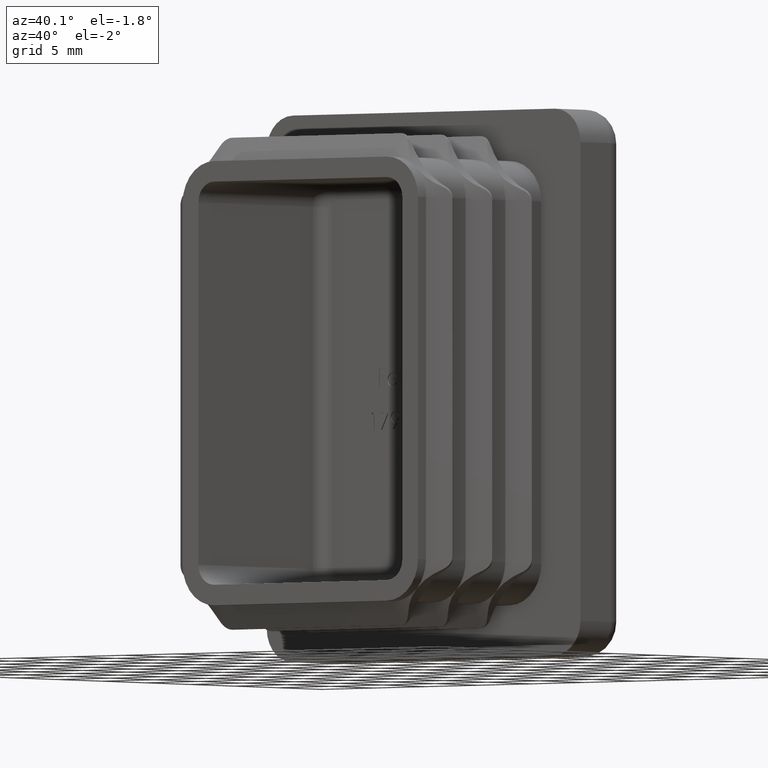
[diagram: clean part render]
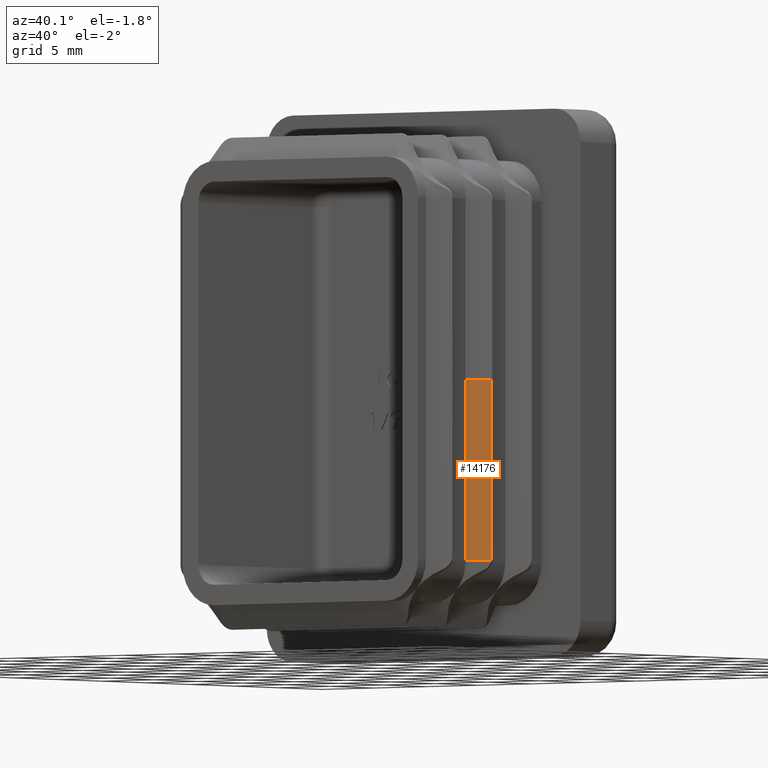
[diagram: same view with one face highlighted and labeled with its STEP entity id]
A machine part, auxiliary view. The second image highlights one B-rep face of the part: STEP entity #14176.
In plain terms, the highlighted planar face has unit normal (-0.4652, 0.8852, -0).
Its self-contained STEP definition (entity closure, byte-faithful):
#97 = DIRECTION ( 'NONE',  ( 0.8851804342171147866, 0.4652478897095613242, 0.000000000000000000 ) ) ;
#307 = LINE ( 'NONE', #1055, #17781 ) ;
#1055 = CARTESIAN_POINT ( 'NONE',  ( 11.25000000000004263, -8.599999999999999645, 0.000000000000000000 ) ) ;
#1276 = VERTEX_POINT ( 'NONE', #6770 ) ;
#1470 = LINE ( 'NONE', #6828, #6149 ) ;
#2233 = LINE ( 'NONE', #5828, #7457 ) ;
#3887 = VECTOR ( 'NONE', #7681, 1000.000000000000114 ) ;
#4136 = EDGE_CURVE ( 'NONE', #1276, #4457, #5544, .T. ) ;
#4457 = VERTEX_POINT ( 'NONE', #12447 ) ;
#4765 = CARTESIAN_POINT ( 'NONE',  ( 11.25000000000000711, -8.600000000000020961, -13.25000000000000000 ) ) ;
#5014 = VERTEX_POINT ( 'NONE', #17338 ) ;
#5544 = LINE ( 'NONE', #21565, #3887 ) ;
#5680 = FACE_OUTER_BOUND ( 'NONE', #17832, .T. ) ;
#5828 = CARTESIAN_POINT ( 'NONE',  ( 12.97326239448552698, -7.694259021710856850, 0.000000000000000000 ) ) ;
#6149 = VECTOR ( 'NONE', #97, 1000.000000000000114 ) ;
#6770 = CARTESIAN_POINT ( 'NONE',  ( 11.25000000000000178, -8.600000000000020961, 0.000000000000000000 ) ) ;
#6828 = CARTESIAN_POINT ( 'NONE',  ( 12.97326239448553054, -7.694259021710857738, -13.24999999999999822 ) ) ;
#6967 = CARTESIAN_POINT ( 'NONE',  ( 12.97326239448552698, -7.694259021710857738, 0.000000000000000000 ) ) ;
#7109 = DIRECTION ( 'NONE',  ( -0.4652478897095613242, 0.8851804342171147866, -1.522785729109140138E-16 ) ) ;
#7457 = VECTOR ( 'NONE', #9327, 1000.000000000000000 ) ;
#7681 = DIRECTION ( 'NONE',  ( 0.8851804342171147866, 0.4652478897095613242, 0.000000000000000000 ) ) ;
#9327 = DIRECTION ( 'NONE',  ( 3.273063162220390819E-16, 0.000000000000000000, -1.000000000000000000 ) ) ;
#10540 = PLANE ( 'NONE',  #19591 ) ;
#12447 = CARTESIAN_POINT ( 'NONE',  ( 12.97326239448552698, -7.694259021710856850, 0.000000000000000000 ) ) ;
#13096 = ORIENTED_EDGE ( 'NONE', *, *, #19042, .F. ) ;
#13539 = EDGE_CURVE ( 'NONE', #20431, #5014, #1470, .T. ) ;
#13692 = DIRECTION ( 'NONE',  ( 3.273063162220390819E-16, 0.000000000000000000, -1.000000000000000000 ) ) ;
#14176 = ADVANCED_FACE ( 'NONE', ( #5680 ), #10540, .F. ) ;
#14426 = DIRECTION ( 'NONE',  ( -0.8851804342171146756, -0.4652478897095612687, 0.000000000000000000 ) ) ;
#17338 = CARTESIAN_POINT ( 'NONE',  ( 12.97326239448553054, -7.694259021710856850, -13.24999999999999822 ) ) ;
#17538 = ORIENTED_EDGE ( 'NONE', *, *, #4136, .F. ) ;
#17781 = VECTOR ( 'NONE', #13692, 1000.000000000000000 ) ;
#17832 = EDGE_LOOP ( 'NONE', ( #13096, #17538, #18397, #22523 ) ) ;
#18397 = ORIENTED_EDGE ( 'NONE', *, *, #21068, .T. ) ;
#19042 = EDGE_CURVE ( 'NONE', #4457, #5014, #2233, .T. ) ;
#19591 = AXIS2_PLACEMENT_3D ( 'NONE', #6967, #7109, #14426 ) ;
#20431 = VERTEX_POINT ( 'NONE', #4765 ) ;
#21068 = EDGE_CURVE ( 'NONE', #1276, #20431, #307, .T. ) ;
#21565 = CARTESIAN_POINT ( 'NONE',  ( 12.97326239448552698, -7.694259021710857738, 0.000000000000000000 ) ) ;
#22523 = ORIENTED_EDGE ( 'NONE', *, *, #13539, .T. ) ;